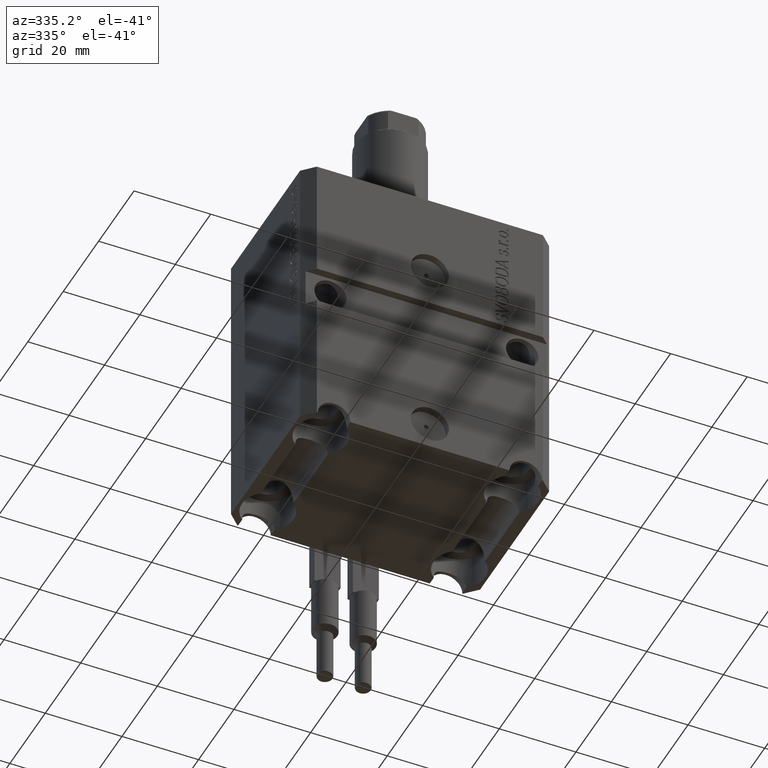
[diagram: clean part render]
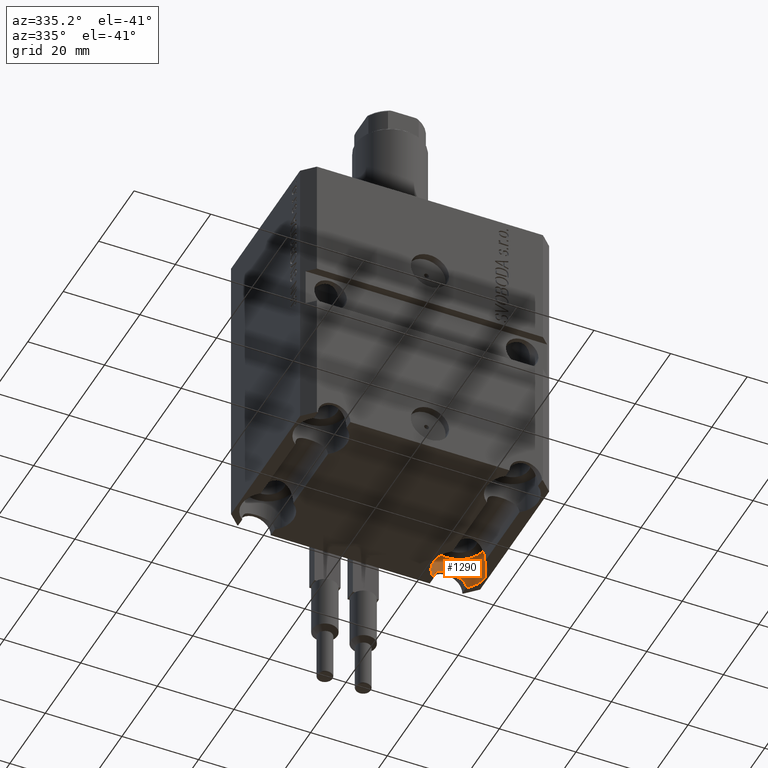
[diagram: same view with one face highlighted and labeled with its STEP entity id]
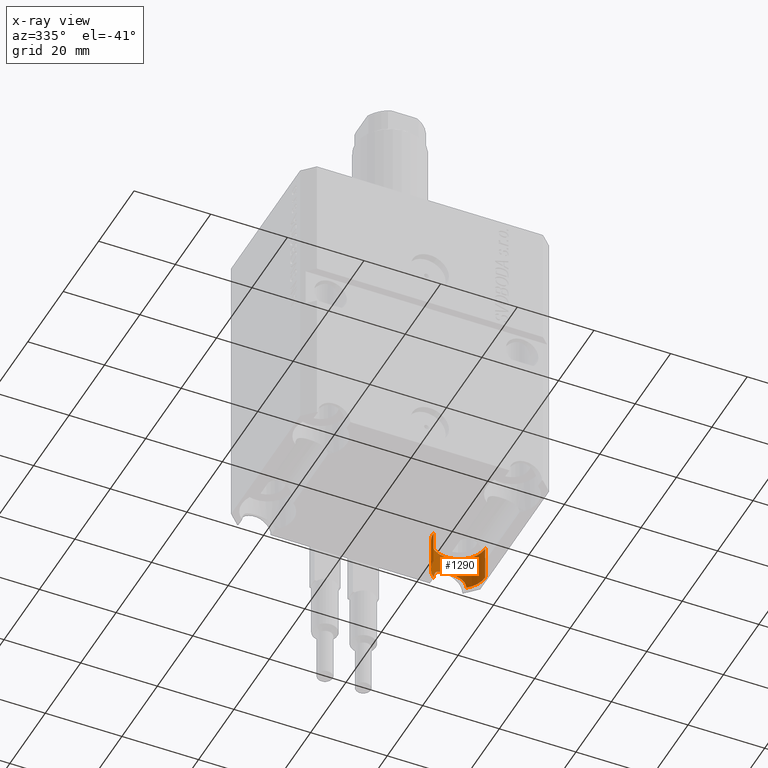
[diagram: x-ray of the same camera — body ghosted, the highlighted face saturated]
A machine part, auxiliary view. The second image highlights one B-rep face of the part: STEP entity #1290.
The next image is the same camera in x-ray: the body ghosted, the highlighted face saturated — about 0% of this face is hidden behind the body in this view.
In plain terms, the highlighted cylindrical surface (edge-blend (fillet) strip) has radius 6.75 mm, axis along (-0, -0, -1).
Its self-contained STEP definition (entity closure, byte-faithful):
#29 = DIRECTION ( 'NONE',  ( 1.000000000000000000, 0.000000000000000000, 0.000000000000000000 ) ) ;
#118 = CARTESIAN_POINT ( 'NONE',  ( 31.74999999995845101, 15.00000000000000888, -77.00000000000000000 ) ) ;
#196 = CARTESIAN_POINT ( 'NONE',  ( 20.75000000001094236, 20.24404424080615783, -77.00000000000000000 ) ) ;
#199 = ORIENTED_EDGE ( 'NONE', *, *, #4552, .F. ) ;
#634 = CIRCLE ( 'NONE', #43105, 6.749999999958452790 ) ;
#972 = AXIS2_PLACEMENT_3D ( 'NONE', #1452, #24851, #28303 ) ;
#1111 = CARTESIAN_POINT ( 'NONE',  ( 20.75000000001093881, 20.24404424080616138, -76.70949288175238223 ) ) ;
#1290 = ADVANCED_FACE ( 'NONE', ( #11051 ), #25034, .F. ) ;
#1452 = CARTESIAN_POINT ( 'NONE',  ( 24.99999999999999645, 15.00000000000000888, -77.00000000000000000 ) ) ;
#1790 = CARTESIAN_POINT ( 'NONE',  ( 29.22068110184619982, 20.26815683102902099, -76.42737131045338117 ) ) ;
#2550 = AXIS2_PLACEMENT_3D ( 'NONE', #39017, #10155, #3044 ) ;
#3044 = DIRECTION ( 'NONE',  ( -1.000000000000000000, 0.000000000000000000, 0.000000000000000000 ) ) ;
#3155 = CIRCLE ( 'NONE', #972, 6.749999999958452790 ) ;
#3347 = VERTEX_POINT ( 'NONE', #196 ) ;
#4320 = CARTESIAN_POINT ( 'NONE',  ( 21.32128784263191434, 20.66225002268221900, -74.85450094119410380 ) ) ;
#4543 = CARTESIAN_POINT ( 'NONE',  ( 24.29301659678832337, 21.71433618117963604, -72.80681513055230880 ) ) ;
#4552 = EDGE_CURVE ( 'NONE', #26704, #43481, #26727, .T. ) ;
#4771 = CARTESIAN_POINT ( 'NONE',  ( 20.75000000001094236, 20.24404424080615783, -77.00000000000000000 ) ) ;
#5220 = CARTESIAN_POINT ( 'NONE',  ( 28.37364191675071723, 20.84918595143545161, -74.40085671727480587 ) ) ;
#7849 = VERTEX_POINT ( 'NONE', #15845 ) ;
#8218 = CARTESIAN_POINT ( 'NONE',  ( 26.40679391636540529, 21.60704563676844359, -72.97996965330845853 ) ) ;
#8607 = DIRECTION ( 'NONE',  ( -0.000000000000000000, -0.000000000000000000, 1.000000000000000000 ) ) ;
#8668 = CARTESIAN_POINT ( 'NONE',  ( 22.82966458629721629, 21.41358264337117490, -73.30345003137961157 ) ) ;
#8895 = CARTESIAN_POINT ( 'NONE',  ( 26.91825339580308807, 21.47706917355014156, -73.19736709358718940 ) ) ;
#10155 = DIRECTION ( 'NONE',  ( -0.000000000000000000, -0.000000000000000000, -1.000000000000000000 ) ) ;
#10887 = EDGE_LOOP ( 'NONE', ( #23754, #20444, #23991, #39824, #14665, #199 ) ) ;
#11051 = FACE_OUTER_BOUND ( 'NONE', #10887, .T. ) ;
#11426 = CARTESIAN_POINT ( 'NONE',  ( 18.25000000004154543, 15.00000000000000888, -77.00000000000000000 ) ) ;
#11429 = CARTESIAN_POINT ( 'NONE',  ( 28.80883519771458978, 20.57428002132229139, -75.09437854561748793 ) ) ;
#11980 = DIRECTION ( 'NONE',  ( -0.000000000000000000, -0.000000000000000000, -1.000000000000000000 ) ) ;
#12108 = CARTESIAN_POINT ( 'NONE',  ( 27.60989747677209749, 21.22970274511954969, -73.63468536815052801 ) ) ;
#12330 = CARTESIAN_POINT ( 'NONE',  ( 23.60174804030335594, 21.60892320954140544, -72.97688232501775474 ) ) ;
#14665 = ORIENTED_EDGE ( 'NONE', *, *, #24230, .F. ) ;
#15094 = CARTESIAN_POINT ( 'NONE',  ( 21.19197043689771931, 20.57482768152826935, -75.09285034462340036 ) ) ;
#15473 = EDGE_CURVE ( 'NONE', #3347, #18170, #3155, .T. ) ;
#15550 = CARTESIAN_POINT ( 'NONE',  ( 28.67841406762652312, 20.66248231997368023, -74.85377644834458977 ) ) ;
#15845 = CARTESIAN_POINT ( 'NONE',  ( 18.25000000004154543, 15.00000000000000888, -68.00000000000000000 ) ) ;
#16030 = VERTEX_POINT ( 'NONE', #37502 ) ;
#17009 = DIRECTION ( 'NONE',  ( 1.000000000000000000, 0.000000000000000000, 0.000000000000000000 ) ) ;
#17449 = CARTESIAN_POINT ( 'NONE',  ( 24.99999999999999645, 15.00000000000000888, -68.00000000000000000 ) ) ;
#18170 = VERTEX_POINT ( 'NONE', #11426 ) ;
#18310 = CARTESIAN_POINT ( 'NONE',  ( 20.77943921721699994, 20.26825657134961034, -76.42625595530017790 ) ) ;
#18534 = CARTESIAN_POINT ( 'NONE',  ( 27.15826417852261443, 21.40020756440894445, -73.32865104541835422 ) ) ;
#18764 = CARTESIAN_POINT ( 'NONE',  ( 28.20249571923849174, 20.94573325532200059, -74.19299196561196652 ) ) ;
#19214 = CARTESIAN_POINT ( 'NONE',  ( 21.79781287632887654, 20.94590750326279149, -74.19261591591991589 ) ) ;
#20444 = ORIENTED_EDGE ( 'NONE', *, *, #36150, .T. ) ;
#20459 = CARTESIAN_POINT ( 'NONE',  ( 24.99999999999999645, 15.00000000000000888, -77.00000000000000000 ) ) ;
#21534 = LINE ( 'NONE', #45130, #25772 ) ;
#21952 = CARTESIAN_POINT ( 'NONE',  ( 29.24999999998905764, 20.24404424080615428, -77.00000000000000000 ) ) ;
#21984 = CARTESIAN_POINT ( 'NONE',  ( 29.24999999998905764, 20.24404424080615428, -77.00000000000000000 ) ) ;
#22206 = CARTESIAN_POINT ( 'NONE',  ( 24.86372762362140776, 21.75016087819208366, -72.74974448726236176 ) ) ;
#22661 = CARTESIAN_POINT ( 'NONE',  ( 29.24999999998906475, 20.24404424080615783, -76.71009799152760422 ) ) ;
#22890 = CARTESIAN_POINT ( 'NONE',  ( 25.29579027810871494, 21.74966490140168318, -72.75053221589617181 ) ) ;
#23754 = ORIENTED_EDGE ( 'NONE', *, *, #30919, .F. ) ;
#23991 = ORIENTED_EDGE ( 'NONE', *, *, #24144, .T. ) ;
#24144 = EDGE_CURVE ( 'NONE', #7849, #18170, #21534, .T. ) ;
#24230 = EDGE_CURVE ( 'NONE', #43481, #3347, #38638, .T. ) ;
#24851 = DIRECTION ( 'NONE',  ( -0.000000000000000000, -0.000000000000000000, 1.000000000000000000 ) ) ;
#25034 = CYLINDRICAL_SURFACE ( 'NONE', #2550, 6.749999999958452790 ) ;
#25272 = LINE ( 'NONE', #29166, #40028 ) ;
#25414 = CARTESIAN_POINT ( 'NONE',  ( 29.02324286101084994, 20.42156252392126703, -75.60281154740034992 ) ) ;
#25637 = CARTESIAN_POINT ( 'NONE',  ( 27.82187962099225231, 21.13552916868720999, -73.81060062997927673 ) ) ;
#25772 = VECTOR ( 'NONE', #38934, 1000.000000000000000 ) ;
#26093 = CARTESIAN_POINT ( 'NONE',  ( 29.10799430851617231, 20.35649214701171061, -75.87463990617570175 ) ) ;
#26704 = VERTEX_POINT ( 'NONE', #118 ) ;
#26727 = CIRCLE ( 'NONE', #42819, 6.749999999958452790 ) ;
#28303 = DIRECTION ( 'NONE',  ( 1.000000000000000000, 0.000000000000000000, 0.000000000000000000 ) ) ;
#28854 = CARTESIAN_POINT ( 'NONE',  ( 26.13220518715609586, 21.66022588181451525, -72.89383447810465100 ) ) ;
#29166 = CARTESIAN_POINT ( 'NONE',  ( 31.74999999995845101, 15.00000000000000888, -68.00000000000000000 ) ) ;
#30919 = EDGE_CURVE ( 'NONE', #16030, #26704, #25272, .T. ) ;
#31434 = DIRECTION ( 'NONE',  ( -0.000000000000000000, -0.000000000000000000, 1.000000000000000000 ) ) ;
#32519 = CARTESIAN_POINT ( 'NONE',  ( 21.62392056618318037, 20.84774196700672633, -74.40420012237770209 ) ) ;
#35959 = CARTESIAN_POINT ( 'NONE',  ( 20.89251827344860502, 20.35688850815289896, -75.87265381712590795 ) ) ;
#36150 = EDGE_CURVE ( 'NONE', #16030, #7849, #634, .T. ) ;
#36639 = CARTESIAN_POINT ( 'NONE',  ( 22.36936483042151380, 21.23085325262174905, -73.61859649153477392 ) ) ;
#37502 = CARTESIAN_POINT ( 'NONE',  ( 31.74999999995845101, 15.00000000000000888, -68.00000000000000000 ) ) ;
#38638 = B_SPLINE_CURVE_WITH_KNOTS ( 'NONE', 3,
 ( #21984, #22661, #1790, #26093, #25414, #11429, #15550, #5220, #18764, #25637, #12108, #18534, #8895, #8218, #28854, #39841, #22890, #22206, #39614, #40064, #4543, #43728, #12330, #8668, #36639, #19214, #32519, #4320, #15094, #43275, #35959, #18310, #1111, #4771 ),
 .UNSPECIFIED., .F., .F.,
 ( 4, 2, 2, 2, 2, 2, 2, 2, 2, 2, 2, 2, 2, 2, 2, 2, 4 ),
 ( 0.000000000000000000, 0.0008545648006867642178, 0.001709129601373528436, 0.002563694402060292653, 0.003418259202747056871, 0.004272824003433820655, 0.005127388804120585307, 0.005981953604807349091, 0.006836518405494113743, 0.007263800805837495635, 0.007691083206180877527, 0.008545648006867651719, 0.01025477760824120010, 0.01110934240892797603, 0.01196390720961475543, 0.01281847201030153309, 0.01367303681098831249 ),
 .UNSPECIFIED. ) ;
#38934 = DIRECTION ( 'NONE',  ( -0.000000000000000000, -0.000000000000000000, -1.000000000000000000 ) ) ;
#39017 = CARTESIAN_POINT ( 'NONE',  ( 24.99999999999999645, 15.00000000000000888, -68.00000000000000000 ) ) ;
#39614 = CARTESIAN_POINT ( 'NONE',  ( 24.71852186798689388, 21.74563790151761111, -72.75691690224461183 ) ) ;
#39824 = ORIENTED_EDGE ( 'NONE', *, *, #15473, .F. ) ;
#39841 = CARTESIAN_POINT ( 'NONE',  ( 25.57814582324674646, 21.73099136752361815, -72.78001998984737497 ) ) ;
#40028 = VECTOR ( 'NONE', #11980, 1000.000000000000000 ) ;
#40064 = CARTESIAN_POINT ( 'NONE',  ( 24.43370372598380413, 21.72771648980751280, -72.78546649754751741 ) ) ;
#42819 = AXIS2_PLACEMENT_3D ( 'NONE', #20459, #8607, #17009 ) ;
#43105 = AXIS2_PLACEMENT_3D ( 'NONE', #17449, #31434, #29 ) ;
#43275 = CARTESIAN_POINT ( 'NONE',  ( 20.97772689259442913, 20.42227921465104501, -75.60013285955204765 ) ) ;
#43481 = VERTEX_POINT ( 'NONE', #21952 ) ;
#43728 = CARTESIAN_POINT ( 'NONE',  ( 23.87594718313155084, 21.66164760489708740, -72.89153254944184823 ) ) ;
#45130 = CARTESIAN_POINT ( 'NONE',  ( 18.25000000004154543, 15.00000000000000888, -68.00000000000000000 ) ) ;